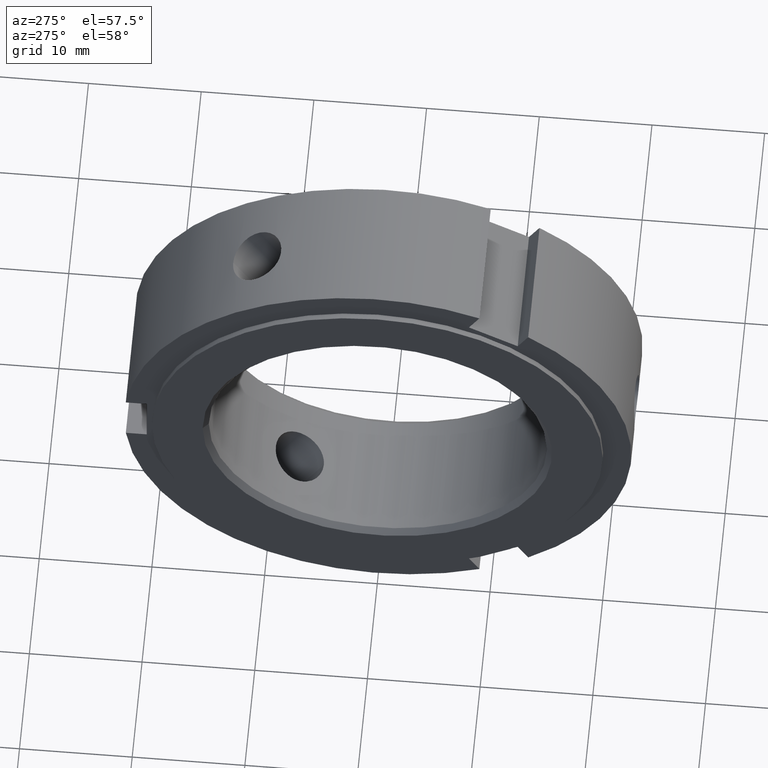
[diagram: clean part render]
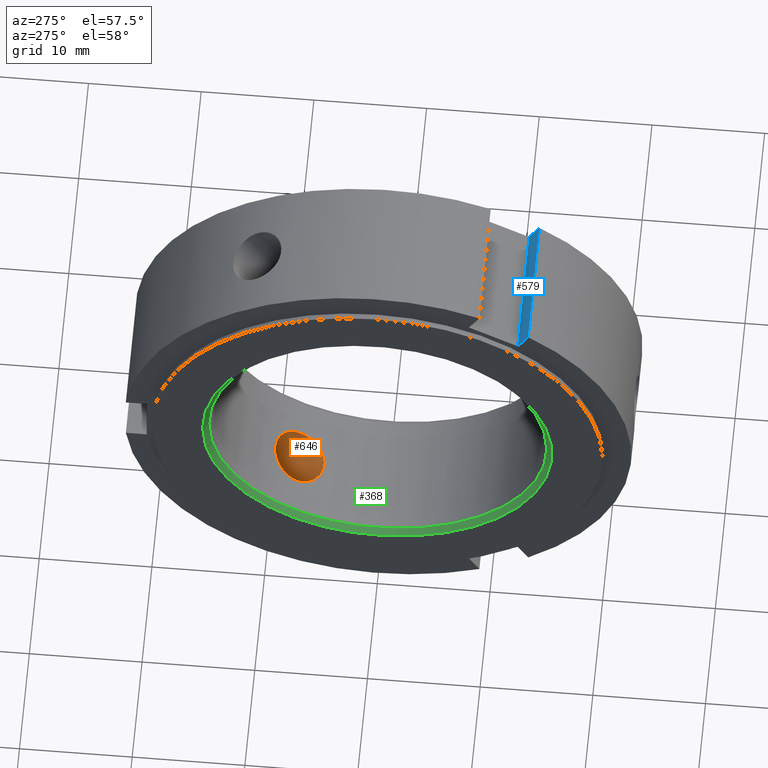
[diagram: same view with three faces highlighted in distinct colors, each labeled with its STEP entity id]
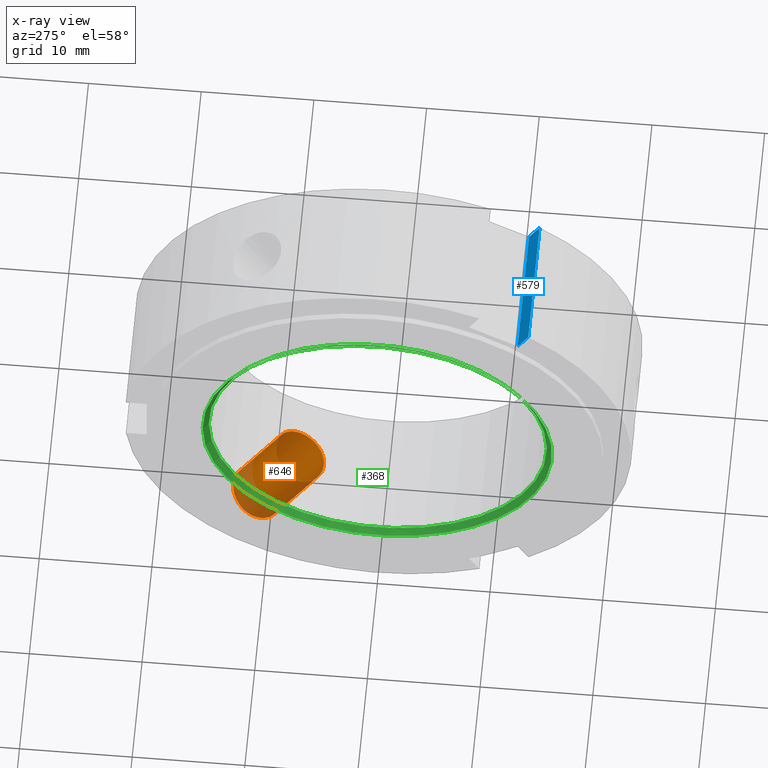
[diagram: x-ray of the same camera — body ghosted, the three highlighted faces saturated]
A machine part, auxiliary view with three faces highlighted in distinct colors.
The next image is the same camera in x-ray (body ghosted, the three faces saturated) — at least one of them is partly hidden behind the body in this view.
Their STEP definitions:

[orange] entity #646 — the highlighted cylindrical surface (bore or boss wall) has radius 2.4585 mm, axis along (0, -0.5, 0.866).
#153=CARTESIAN_POINT('',(5.999999999999995,5.269453734871084,-14.043961596930306));
#154=VERTEX_POINT('',#153);
#155=CARTESIAN_POINT('',(5.999999999999995,5.269453734871085,-14.043961596930304));
#156=CARTESIAN_POINT('',(5.690701021672715,5.269453734871085,-14.043961596930304));
#157=CARTESIAN_POINT('',(5.361174964781102,5.328435241145092,-14.022264681322763));
#158=CARTESIAN_POINT('',(4.755621264227973,5.565096691348294,-13.930033292828625));
#159=CARTESIAN_POINT('',(4.479544766165403,5.742462497111327,-13.859014424074987));
#160=CARTESIAN_POINT('',(4.043616630616777,6.145419614639089,-13.685100353807321));
#161=CARTESIAN_POINT('',(3.854499635617676,6.398020185773067,-13.570459706064135));
#162=CARTESIAN_POINT('',(3.603426014287461,6.941496163627411,-13.300664266782210));
#163=CARTESIAN_POINT('',(3.541499999999994,7.232145912502784,-13.145026686286636));
#164=CARTESIAN_POINT('',(3.541499999999994,7.767854087497215,-12.835735427246519));
#165=CARTESIAN_POINT('',(3.603426014287464,8.047965060427613,-12.661844151364665));
#166=CARTESIAN_POINT('',(3.854499635617681,8.553352753598116,-12.326077867837174));
#167=CARTESIAN_POINT('',(4.043616630616774,8.778934752417008,-12.164639680096286));
#168=CARTESIAN_POINT('',(4.479544766165402,9.131027314108239,-11.902625614815323));
#169=CARTESIAN_POINT('',(4.755621264227973,9.281214361478437,-11.784531755638664));
#170=CARTESIAN_POINT('',(5.361174964781101,9.479419812042272,-11.625692621913295));
#171=CARTESIAN_POINT('',(5.690701021672715,9.527700645279172,-11.585461596930298));
#172=CARTESIAN_POINT('',(6.309298978327273,9.527700645279172,-11.585461596930298));
#173=CARTESIAN_POINT('',(6.638825035218885,9.479419812042272,-11.625692621913293));
#174=CARTESIAN_POINT('',(7.244378735772017,9.281214361478435,-11.784531755638660));
#175=CARTESIAN_POINT('',(7.520455233834587,9.131027314108239,-11.902625614815324));
#176=CARTESIAN_POINT('',(7.956383369383214,8.778934752417008,-12.164639680096286));
#177=CARTESIAN_POINT('',(8.145500364382308,8.553352753598118,-12.326077867837174));
#178=CARTESIAN_POINT('',(8.396573985712525,8.047965060427615,-12.661844151364665));
#179=CARTESIAN_POINT('',(8.458499999999994,7.767854087497215,-12.835735427246519));
#180=CARTESIAN_POINT('',(8.458499999999994,7.232145912502784,-13.145026686286638));
#181=CARTESIAN_POINT('',(8.396573985712525,6.941496163627407,-13.300664266782212));
#182=CARTESIAN_POINT('',(8.145500364382309,6.398020185773063,-13.570459706064138));
#183=CARTESIAN_POINT('',(7.956383369383212,6.145419614639089,-13.685100353807321));
#184=CARTESIAN_POINT('',(7.520455233834584,5.742462497111327,-13.859014424074987));
#185=CARTESIAN_POINT('',(7.244378735772016,5.565096691348294,-13.930033292828625));
#186=CARTESIAN_POINT('',(6.638825035218886,5.328435241145092,-14.022264681322763));
#187=CARTESIAN_POINT('',(6.309298978327272,5.269453734871085,-14.043961596930304));
#188=CARTESIAN_POINT('',(5.999999999999993,5.269453734871085,-14.043961596930304));
#189=B_SPLINE_CURVE_WITH_KNOTS('',3,(#155,#156,#157,#158,#159,#160,#161,#162,#163,#164,#165,#166,#167,#168,#169,#170,#171,#172,#173,#174,#175,#176,#177,#178,#179,#180,#181,#182,#183,#184,#185,#186,#187,#188),.UNSPECIFIED.,.T.,.U.,(4,2,2,2,2,2,2,2,2,2,2,2,2,2,2,2,4),(0.0,0.092789693498184,0.185579386996367,0.278366764708403,0.371154142420438,0.463941520132473,0.556728897844509,0.649518591342692,0.742308284840876,0.835097978339059,0.927887671837243,1.020675049549278,1.113462427261314,1.206249804973349,1.299037182685384,1.391826876183568,1.484616569681752),.UNSPECIFIED.);
#190=EDGE_CURVE('',#154,#154,#189,.T.);
#597=CARTESIAN_POINT('',(5.999999999999995,32.332184390614962,-56.000986084230526));
#598=DIRECTION('',(0.0,-0.500000000000000,0.866025403784439));
#599=DIRECTION('',(-1.0,0.0,0.0));
#600=AXIS2_PLACEMENT_3D('',#597,#598,#599);
#601=CYLINDRICAL_SURFACE('',#600,2.458500000000000);
#602=CARTESIAN_POINT('',(5.999999999999995,9.053516860817028,-20.598151190116592));
#603=VERTEX_POINT('',#602);
#604=CARTESIAN_POINT('',(5.999999999999993,9.053516860817032,-20.598151190116592));
#605=CARTESIAN_POINT('',(6.308960393679367,9.053516860817032,-20.598151190116592));
#606=CARTESIAN_POINT('',(6.638344698398965,9.110565145808900,-20.573369000436607));
#607=CARTESIAN_POINT('',(7.243994563331622,9.340648295961579,-20.469934016331276));
#608=CARTESIAN_POINT('',(7.520281295008822,9.513485288215481,-20.390965372419110));
#609=CARTESIAN_POINT('',(7.956561687762607,9.908219934165674,-20.202105049204981));
#610=CARTESIAN_POINT('',(8.145728064719984,10.156482947758843,-20.079534812390708));
#611=CARTESIAN_POINT('',(8.396704023595195,10.693670687880291,-19.798668424092295));
#612=CARTESIAN_POINT('',(8.458499999999994,10.982433750883587,-19.640051031103280));
#613=CARTESIAN_POINT('',(8.458499999999994,11.517566249116403,-19.331092139196450));
#614=CARTESIAN_POINT('',(8.396704023595195,11.799314472428597,-19.160324687455493));
#615=CARTESIAN_POINT('',(8.145728064719982,12.311145769824934,-18.835539652057975));
#616=CARTESIAN_POINT('',(7.956561687762608,12.541426215450556,-18.681822693873347));
#617=CARTESIAN_POINT('',(7.520281295008820,12.902351376096028,-18.434402624333686));
#618=CARTESIAN_POINT('',(7.243994563331619,13.057158723953322,-18.324205720284191));
#619=CARTESIAN_POINT('',(6.638344698398965,13.261777622904916,-18.176665359321895));
#620=CARTESIAN_POINT('',(6.308960393679368,13.311763771225120,-18.139651190116584));
#621=CARTESIAN_POINT('',(5.691039606320620,13.311763771225120,-18.139651190116584));
#622=CARTESIAN_POINT('',(5.361655301601022,13.261777622904917,-18.176665359321891));
#623=CARTESIAN_POINT('',(4.756005436668367,13.057158723953320,-18.324205720284194));
#624=CARTESIAN_POINT('',(4.479718704991167,12.902351376096028,-18.434402624333686));
#625=CARTESIAN_POINT('',(4.043438312237379,12.541426215450556,-18.681822693873347));
#626=CARTESIAN_POINT('',(3.854271935280005,12.311145769824932,-18.835539652057975));
#627=CARTESIAN_POINT('',(3.603295976404795,11.799314472428597,-19.160324687455493));
#628=CARTESIAN_POINT('',(3.541499999999994,11.517566249116403,-19.331092139196450));
#629=CARTESIAN_POINT('',(3.541499999999994,10.982433750883589,-19.640051031103280));
#630=CARTESIAN_POINT('',(3.603295976404794,10.693670687880291,-19.798668424092295));
#631=CARTESIAN_POINT('',(3.854271935280003,10.156482947758844,-20.079534812390708));
#632=CARTESIAN_POINT('',(4.043438312237379,9.908219934165674,-20.202105049204985));
#633=CARTESIAN_POINT('',(4.479718704991166,9.513485288215481,-20.390965372419110));
#634=CARTESIAN_POINT('',(4.756005436668366,9.340648295961579,-20.469934016331276));
#635=CARTESIAN_POINT('',(5.361655301601022,9.110565145808900,-20.573369000436607));
#636=CARTESIAN_POINT('',(5.691039606320620,9.053516860817032,-20.598151190116592));
#637=CARTESIAN_POINT('',(5.999999999999995,9.053516860817032,-20.598151190116592));
#638=B_SPLINE_CURVE_WITH_KNOTS('',3,(#604,#605,#606,#607,#608,#609,#610,#611,#612,#613,#614,#615,#616,#617,#618,#619,#620,#621,#622,#623,#624,#625,#626,#627,#628,#629,#630,#631,#632,#633,#634,#635,#636,#637),.UNSPECIFIED.,.T.,.U.,(4,2,2,2,2,2,2,2,2,2,2,2,2,2,2,2,4),(0.0,0.092688118103812,0.185376236207624,0.278063903779674,0.370751571351723,0.463439238923773,0.556126906495822,0.648815024599634,0.741503142703447,0.834191260807259,0.926879378911071,1.019567046483120,1.112254714055170,1.204942381627219,1.297630049199269,1.390318167303081,1.483006285406893),.UNSPECIFIED.);
#639=EDGE_CURVE('',#603,#603,#638,.T.);
#640=ORIENTED_EDGE('',*,*,#639,.F.);
#641=EDGE_LOOP('',(#640));
#642=FACE_OUTER_BOUND('',#641,.T.);
#643=ORIENTED_EDGE('',*,*,#190,.F.);
#644=EDGE_LOOP('',(#643));
#645=FACE_BOUND('',#644,.T.);
#646=ADVANCED_FACE('',(#642,#645),#601,.F.);

[blue] entity #579 — the highlighted planar face has unit normal (0, -0.866, -0.5).
#320=CARTESIAN_POINT('',(11.999999999999996,-12.415063509461090,16.503520777580995));
#321=VERTEX_POINT('',#320);
#328=CARTESIAN_POINT('',(11.999999999999996,-13.345403396960037,18.114916731037084));
#329=VERTEX_POINT('',#328);
#330=CARTESIAN_POINT('',(11.999999999999996,-12.415063509461094,16.503520777580995));
#331=DIRECTION('',(0.0,-0.499999999999999,0.866025403784439));
#332=VECTOR('',#331,1.860679774997897);
#333=LINE('',#330,#332);
#334=EDGE_CURVE('',#321,#329,#333,.T.);
#549=CARTESIAN_POINT('',(11.999999999999996,-13.415063509461092,18.235571585149874));
#550=DIRECTION('',(0.0,-0.866025403784439,-0.500000000000000));
#551=DIRECTION('',(1.0,0.0,0.0));
#552=AXIS2_PLACEMENT_3D('',#549,#550,#551);
#553=PLANE('',#552);
#554=CARTESIAN_POINT('',(0.499999999999994,-13.345403396960036,18.114916731037081));
#555=VERTEX_POINT('',#554);
#556=CARTESIAN_POINT('',(0.499999999999994,-12.415063509461090,16.503520777580995));
#557=VERTEX_POINT('',#556);
#558=CARTESIAN_POINT('',(0.499999999999995,-13.345403396960036,18.114916731037084));
#559=DIRECTION('',(0.0,0.499999999999999,-0.866025403784439));
#560=VECTOR('',#559,1.860679774997892);
#561=LINE('',#558,#560);
#562=EDGE_CURVE('',#555,#557,#561,.T.);
#563=ORIENTED_EDGE('',*,*,#562,.F.);
#564=CARTESIAN_POINT('',(11.999999999999996,-13.345403396960037,18.114916731037084));
#565=DIRECTION('',(-1.0,0.0,0.0));
#566=VECTOR('',#565,11.500000000000004);
#567=LINE('',#564,#566);
#568=EDGE_CURVE('',#329,#555,#567,.T.);
#569=ORIENTED_EDGE('',*,*,#568,.F.);
#570=ORIENTED_EDGE('',*,*,#334,.F.);
#571=CARTESIAN_POINT('',(11.999999999999996,-12.415063509461090,16.503520777580995));
#572=DIRECTION('',(-1.0,0.0,0.0));
#573=VECTOR('',#572,11.500000000000004);
#574=LINE('',#571,#573);
#575=EDGE_CURVE('',#321,#557,#574,.T.);
#576=ORIENTED_EDGE('',*,*,#575,.T.);
#577=EDGE_LOOP('',(#563,#569,#570,#576));
#578=FACE_OUTER_BOUND('',#577,.T.);
#579=ADVANCED_FACE('',(#578),#553,.F.);

[green] entity #368 — the highlighted conical surface has half-angle 45 deg.
#101=CARTESIAN_POINT('',(0.499999999999996,15.0,1.836970E-015));
#102=VERTEX_POINT('',#101);
#103=CARTESIAN_POINT('',(0.499999999999996,0.0,0.0));
#104=DIRECTION('',(1.0,0.0,0.0));
#105=DIRECTION('',(0.0,-1.0,0.0));
#106=AXIS2_PLACEMENT_3D('',#103,#104,#105);
#107=CIRCLE('',#106,15.0);
#108=EDGE_CURVE('',#102,#102,#107,.T.);
#349=CARTESIAN_POINT('',(0.249999999999996,0.0,0.0));
#350=DIRECTION('',(-1.0,0.0,0.0));
#351=DIRECTION('',(0.0,-1.0,0.0));
#352=AXIS2_PLACEMENT_3D('',#349,#350,#351);
#353=CONICAL_SURFACE('',#352,15.250000000000000,44.999999999999993);
#354=ORIENTED_EDGE('',*,*,#108,.T.);
#355=EDGE_LOOP('',(#354));
#356=FACE_OUTER_BOUND('',#355,.T.);
#357=CARTESIAN_POINT('',(-4.093947E-015,15.500000000000000,-1.898203E-015));
#358=VERTEX_POINT('',#357);
#359=CARTESIAN_POINT('',(-4.093947E-015,0.0,0.0));
#360=DIRECTION('',(-1.0,0.0,0.0));
#361=DIRECTION('',(0.0,-1.0,0.0));
#362=AXIS2_PLACEMENT_3D('',#359,#360,#361);
#363=CIRCLE('',#362,15.500000000000000);
#364=EDGE_CURVE('',#358,#358,#363,.T.);
#365=ORIENTED_EDGE('',*,*,#364,.T.);
#366=EDGE_LOOP('',(#365));
#367=FACE_BOUND('',#366,.T.);
#368=ADVANCED_FACE('',(#356,#367),#353,.F.);